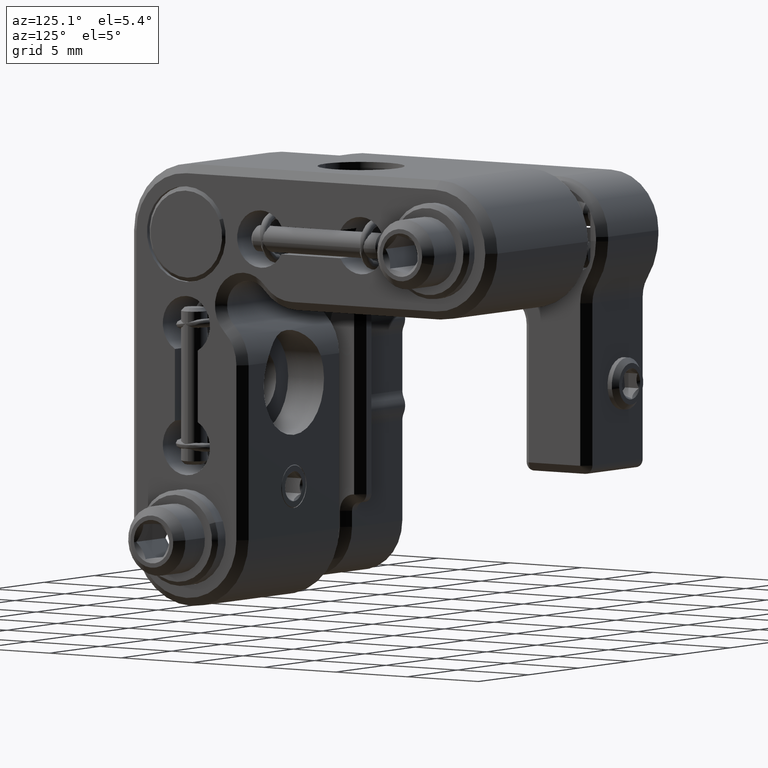
[diagram: clean part render]
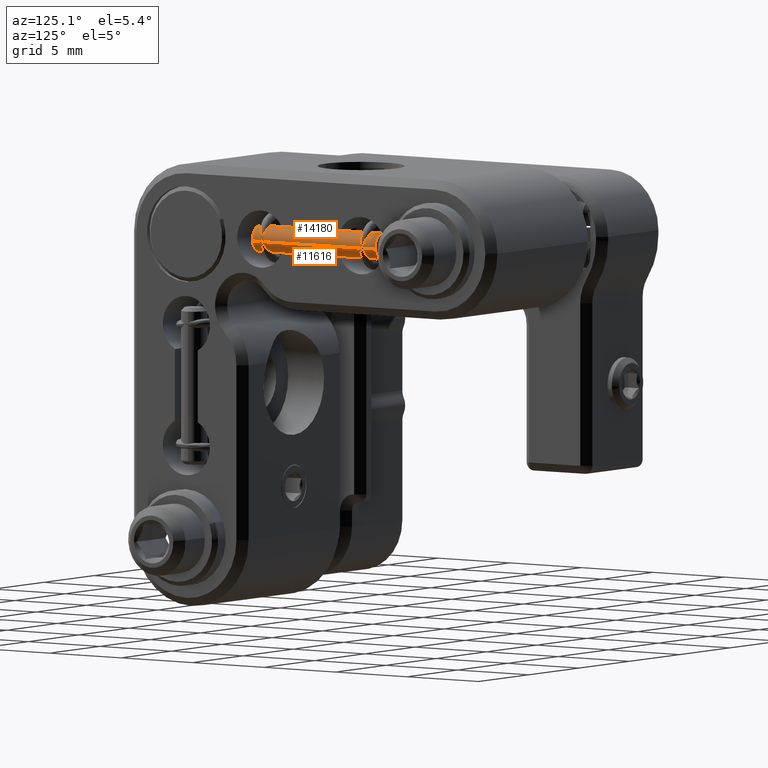
[diagram: same view with one multi-face feature highlighted, each face labeled with its STEP entity id]
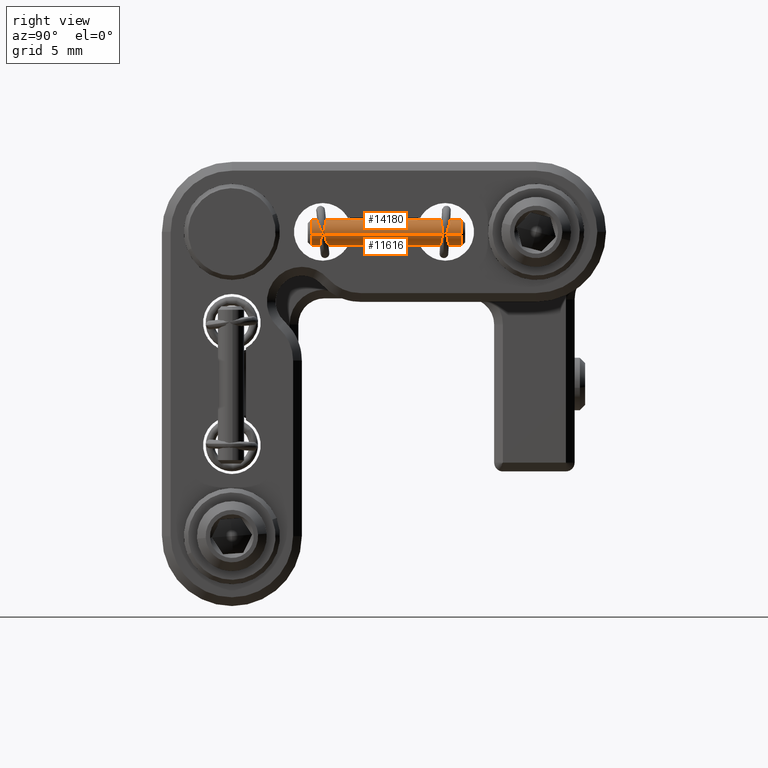
[diagram: same view with one multi-face feature highlighted, each face labeled with its STEP entity id]
A machine part, auxiliary view. The highlighted faces form ONE feature: a constant-radius fillet chain: 2 tangent blend faces with common blend radius 0.75 mm. The faces share edges in the B-rep.
A second angle (right view) of the same feature is appended — it is thin or edge-on in the first view.
Their STEP definitions:
[1] entity #11616 (Cylinder):
#1285 = DIRECTION ( 'NONE',  ( -3.331515382154321487E-17, -1.000000000000000000, -3.727759047372608654E-16 ) ) ;
#1628 = CARTESIAN_POINT ( 'NONE',  ( 27.73716218502080366, 8.542070250223254391, -2.752978792102455330 ) ) ;
#1815 = CARTESIAN_POINT ( 'NONE',  ( 26.99426557823280959, 8.542070250223254391, -2.649999999999976374 ) ) ;
#2085 = CARTESIAN_POINT ( 'NONE',  ( 26.25136897144481551, 17.14207025022325581, -2.547021207897491202 ) ) ;
#2356 = LINE ( 'NONE', #21562, #22201 ) ;
#2743 = ORIENTED_EDGE ( 'NONE', *, *, #17052, .T. ) ;
#4170 = DIRECTION ( 'NONE',  ( -3.331515382154321487E-17, -1.000000000000000000, -3.727759047372608161E-16 ) ) ;
#5111 = DIRECTION ( 'NONE',  ( -0.9905288090506574328, 0.0000000000000000000, 0.1373050561366409295 ) ) ;
#5700 = CYLINDRICAL_SURFACE ( 'NONE', #16243, 0.7500000000000016653 ) ;
#5774 = CARTESIAN_POINT ( 'NONE',  ( 26.25136897144481907, 8.542070250223254391, -2.547021207897493866 ) ) ;
#5979 = DIRECTION ( 'NONE',  ( -3.331515382154321487E-17, -1.000000000000000000, -3.727759047372608161E-16 ) ) ;
#7798 = CARTESIAN_POINT ( 'NONE',  ( 27.73716218502080366, 17.34207025022325510, -2.752978792102453554 ) ) ;
#8063 = EDGE_CURVE ( 'NONE', #14865, #13094, #10867, .T. ) ;
#8379 = EDGE_CURVE ( 'NONE', #22063, #16451, #10025, .T. ) ;
#9768 = FACE_OUTER_BOUND ( 'NONE', #17768, .T. ) ;
#9903 = AXIS2_PLACEMENT_3D ( 'NONE', #1815, #19212, #5111 ) ;
#10025 = CIRCLE ( 'NONE', #17874, 0.7500000000000016653 ) ;
#10867 = CIRCLE ( 'NONE', #9903, 0.7500000000000016653 ) ;
#11586 = ORIENTED_EDGE ( 'NONE', *, *, #20949, .F. ) ;
#11616 = ADVANCED_FACE ( 'NONE', ( #9768 ), #5700, .T. ) ;
#13094 = VERTEX_POINT ( 'NONE', #5774 ) ;
#14083 = CARTESIAN_POINT ( 'NONE',  ( 26.99426557823280959, 17.34207025022325510, -2.649999999999972822 ) ) ;
#14586 = VECTOR ( 'NONE', #5979, 1000.000000000000000 ) ;
#14643 = ORIENTED_EDGE ( 'NONE', *, *, #8063, .T. ) ;
#14865 = VERTEX_POINT ( 'NONE', #1628 ) ;
#16243 = AXIS2_PLACEMENT_3D ( 'NONE', #14083, #19194, #21298 ) ;
#16398 = CARTESIAN_POINT ( 'NONE',  ( 27.73716218502080366, 17.14207025022325581, -2.752978792102453998 ) ) ;
#16451 = VERTEX_POINT ( 'NONE', #16398 ) ;
#17052 = EDGE_CURVE ( 'NONE', #16451, #14865, #19228, .T. ) ;
#17768 = EDGE_LOOP ( 'NONE', ( #11586, #21583, #2743, #14643 ) ) ;
#17874 = AXIS2_PLACEMENT_3D ( 'NONE', #22428, #1285, #18993 ) ;
#18993 = DIRECTION ( 'NONE',  ( -0.9905288090506574328, 0.0000000000000000000, 0.1373050561366409295 ) ) ;
#19194 = DIRECTION ( 'NONE',  ( -3.331515382154321487E-17, -1.000000000000000000, -3.727759047372608161E-16 ) ) ;
#19212 = DIRECTION ( 'NONE',  ( 3.331515382154321487E-17, 1.000000000000000000, 3.727759047372608161E-16 ) ) ;
#19228 = LINE ( 'NONE', #7798, #14586 ) ;
#20949 = EDGE_CURVE ( 'NONE', #22063, #13094, #2356, .T. ) ;
#21298 = DIRECTION ( 'NONE',  ( 0.9905288090506574328, 0.0000000000000000000, -0.1373050561366409295 ) ) ;
#21562 = CARTESIAN_POINT ( 'NONE',  ( 26.25136897144481551, 17.34207025022325510, -2.547021207897491646 ) ) ;
#21583 = ORIENTED_EDGE ( 'NONE', *, *, #8379, .T. ) ;
#22063 = VERTEX_POINT ( 'NONE', #2085 ) ;
#22201 = VECTOR ( 'NONE', #4170, 1000.000000000000000 ) ;
#22428 = CARTESIAN_POINT ( 'NONE',  ( 26.99426557823280959, 17.14207025022325581, -2.649999999999972822 ) ) ;
[2] entity #14180 (Cylinder):
#1628 = CARTESIAN_POINT ( 'NONE',  ( 27.73716218502080366, 8.542070250223254391, -2.752978792102455330 ) ) ;
#2085 = CARTESIAN_POINT ( 'NONE',  ( 26.25136897144481551, 17.14207025022325581, -2.547021207897491202 ) ) ;
#2356 = LINE ( 'NONE', #21562, #22201 ) ;
#2373 = CARTESIAN_POINT ( 'NONE',  ( 26.99426557823280959, 8.542070250223254391, -2.649999999999976374 ) ) ;
#2921 = DIRECTION ( 'NONE',  ( 0.9905288090506574328, 0.0000000000000000000, -0.1373050561366409295 ) ) ;
#4170 = DIRECTION ( 'NONE',  ( -3.331515382154321487E-17, -1.000000000000000000, -3.727759047372608161E-16 ) ) ;
#4335 = ORIENTED_EDGE ( 'NONE', *, *, #20949, .T. ) ;
#4652 = DIRECTION ( 'NONE',  ( -3.331515382154321487E-17, -1.000000000000000000, -3.727759047372608161E-16 ) ) ;
#5243 = FACE_OUTER_BOUND ( 'NONE', #9627, .T. ) ;
#5301 = DIRECTION ( 'NONE',  ( -3.331515382154321487E-17, -1.000000000000000000, -3.727759047372608654E-16 ) ) ;
#5774 = CARTESIAN_POINT ( 'NONE',  ( 26.25136897144481907, 8.542070250223254391, -2.547021207897493866 ) ) ;
#5901 = DIRECTION ( 'NONE',  ( 3.331515382154321487E-17, 1.000000000000000000, 3.727759047372608161E-16 ) ) ;
#5979 = DIRECTION ( 'NONE',  ( -3.331515382154321487E-17, -1.000000000000000000, -3.727759047372608161E-16 ) ) ;
#7798 = CARTESIAN_POINT ( 'NONE',  ( 27.73716218502080366, 17.34207025022325510, -2.752978792102453554 ) ) ;
#8033 = AXIS2_PLACEMENT_3D ( 'NONE', #9987, #4652, #2921 ) ;
#8737 = CARTESIAN_POINT ( 'NONE',  ( 26.99426557823280959, 17.14207025022325581, -2.649999999999972822 ) ) ;
#8799 = ORIENTED_EDGE ( 'NONE', *, *, #22683, .T. ) ;
#9495 = DIRECTION ( 'NONE',  ( -0.9905288090506574328, 0.0000000000000000000, 0.1373050561366409295 ) ) ;
#9627 = EDGE_LOOP ( 'NONE', ( #14890, #4335, #8799, #14599 ) ) ;
#9987 = CARTESIAN_POINT ( 'NONE',  ( 26.99426557823280959, 17.34207025022325510, -2.649999999999972822 ) ) ;
#10386 = AXIS2_PLACEMENT_3D ( 'NONE', #8737, #5301, #21004 ) ;
#12696 = CIRCLE ( 'NONE', #10386, 0.7500000000000016653 ) ;
#13094 = VERTEX_POINT ( 'NONE', #5774 ) ;
#13307 = EDGE_CURVE ( 'NONE', #16451, #22063, #12696, .T. ) ;
#14180 = ADVANCED_FACE ( 'NONE', ( #5243 ), #20588, .T. ) ;
#14586 = VECTOR ( 'NONE', #5979, 1000.000000000000000 ) ;
#14599 = ORIENTED_EDGE ( 'NONE', *, *, #17052, .F. ) ;
#14865 = VERTEX_POINT ( 'NONE', #1628 ) ;
#14890 = ORIENTED_EDGE ( 'NONE', *, *, #13307, .T. ) ;
#16398 = CARTESIAN_POINT ( 'NONE',  ( 27.73716218502080366, 17.14207025022325581, -2.752978792102453998 ) ) ;
#16451 = VERTEX_POINT ( 'NONE', #16398 ) ;
#17052 = EDGE_CURVE ( 'NONE', #16451, #14865, #19228, .T. ) ;
#17519 = CIRCLE ( 'NONE', #18269, 0.7500000000000016653 ) ;
#18269 = AXIS2_PLACEMENT_3D ( 'NONE', #2373, #5901, #9495 ) ;
#19228 = LINE ( 'NONE', #7798, #14586 ) ;
#20588 = CYLINDRICAL_SURFACE ( 'NONE', #8033, 0.7500000000000016653 ) ;
#20949 = EDGE_CURVE ( 'NONE', #22063, #13094, #2356, .T. ) ;
#21004 = DIRECTION ( 'NONE',  ( -0.9905288090506574328, 0.0000000000000000000, 0.1373050561366409295 ) ) ;
#21562 = CARTESIAN_POINT ( 'NONE',  ( 26.25136897144481551, 17.34207025022325510, -2.547021207897491646 ) ) ;
#22063 = VERTEX_POINT ( 'NONE', #2085 ) ;
#22201 = VECTOR ( 'NONE', #4170, 1000.000000000000000 ) ;
#22683 = EDGE_CURVE ( 'NONE', #13094, #14865, #17519, .T. ) ;